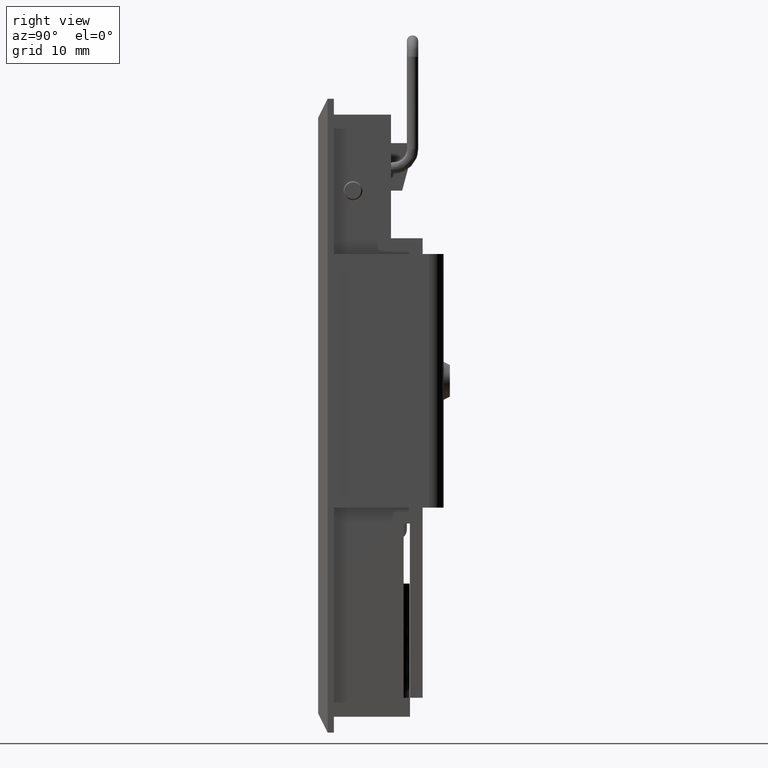
[diagram: clean part render]
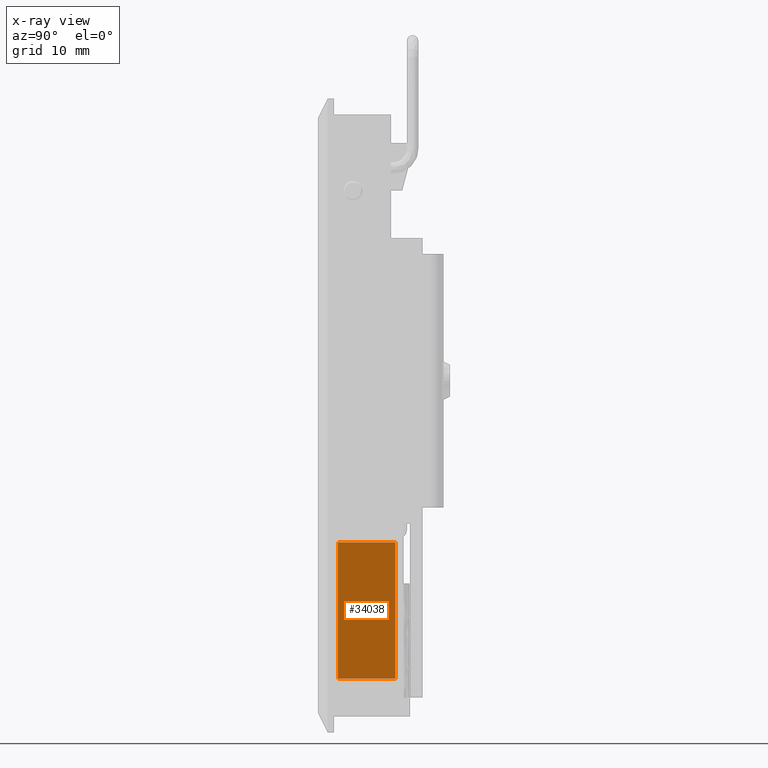
[diagram: x-ray — body ghosted, one internal face saturated and labeled with its STEP entity id]
A machine part, right view, then the same camera in x-ray: the body is ghosted and one INTERNAL B-rep face — a face not visible from any outside direction — is saturated and labeled: STEP entity #34038.
In plain terms, the highlighted face is a freeform B-spline surface patch.
Its self-contained STEP definition (entity closure, byte-faithful):
#34003=CARTESIAN_POINT('',(1.145455050149247,9.400000000000000,31.073924958328831));
#34004=CARTESIAN_POINT('',(11.154544543049139,9.400000000000000,31.073924958328831));
#34005=CARTESIAN_POINT('',(1.145455050149247,9.400000000000000,7.426074464996235));
#34006=CARTESIAN_POINT('',(11.154544543049139,9.400000000000000,7.426074464996235));
#34007=B_SPLINE_SURFACE_WITH_KNOTS('',1,1,((#34003,#34005),(#34004,#34006)),.UNSPECIFIED.,.F.,.F.,.U.,(2,2),(2,2),(0.0,10.009089492899889),(0.0,23.647850493332591),.UNSPECIFIED.);
#34008=CARTESIAN_POINT('',(1.600000000000085,9.400000000000000,30.0));
#34009=VERTEX_POINT('',#34008);
#34010=CARTESIAN_POINT('',(10.699999999999999,9.400000000000000,30.0));
#34011=VERTEX_POINT('',#34010);
#34012=CARTESIAN_POINT('',(1.600000000000085,9.400000000000000,30.0));
#34013=CARTESIAN_POINT('',(10.699999999999999,9.400000000000000,30.0));
#34014=QUASI_UNIFORM_CURVE('',1,(#34012,#34013),.UNSPECIFIED.,.F.,.U.);
#34015=EDGE_CURVE('',#34009,#34011,#34014,.T.);
#34016=ORIENTED_EDGE('',*,*,#34015,.T.);
#34017=CARTESIAN_POINT('',(10.699999999999999,9.400000000000000,8.500000000000000));
#34018=VERTEX_POINT('',#34017);
#34019=CARTESIAN_POINT('',(10.699999999999999,9.400000000000000,30.0));
#34020=CARTESIAN_POINT('',(10.699999999999999,9.400000000000000,8.500000000000000));
#34021=QUASI_UNIFORM_CURVE('',1,(#34019,#34020),.UNSPECIFIED.,.F.,.U.);
#34022=EDGE_CURVE('',#34011,#34018,#34021,.T.);
#34023=ORIENTED_EDGE('',*,*,#34022,.T.);
#34024=CARTESIAN_POINT('',(1.600000000000085,9.400000000000000,8.500000000000000));
#34025=VERTEX_POINT('',#34024);
#34026=CARTESIAN_POINT('',(10.699999999999999,9.400000000000000,8.500000000000000));
#34027=CARTESIAN_POINT('',(1.600000000000085,9.400000000000000,8.500000000000000));
#34028=QUASI_UNIFORM_CURVE('',1,(#34026,#34027),.UNSPECIFIED.,.F.,.U.);
#34029=EDGE_CURVE('',#34018,#34025,#34028,.T.);
#34030=ORIENTED_EDGE('',*,*,#34029,.T.);
#34031=CARTESIAN_POINT('',(1.600000000000085,9.400000000000000,8.500000000000000));
#34032=CARTESIAN_POINT('',(1.600000000000085,9.400000000000000,30.0));
#34033=QUASI_UNIFORM_CURVE('',1,(#34031,#34032),.UNSPECIFIED.,.F.,.U.);
#34034=EDGE_CURVE('',#34025,#34009,#34033,.T.);
#34035=ORIENTED_EDGE('',*,*,#34034,.T.);
#34036=EDGE_LOOP('',(#34016,#34023,#34030,#34035));
#34037=FACE_OUTER_BOUND('',#34036,.T.);
#34038=ADVANCED_FACE('',(#34037),#34007,.T.);